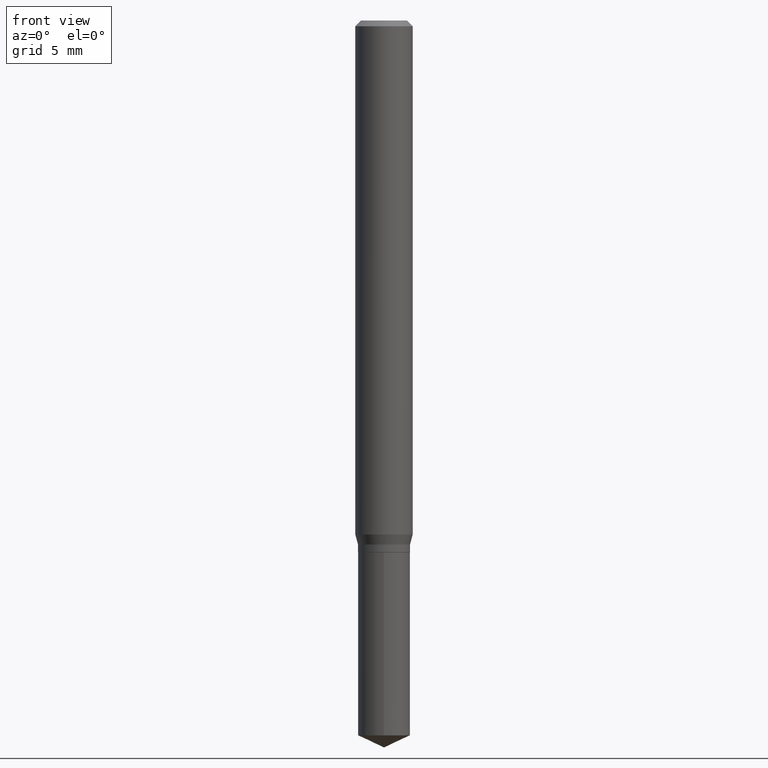
[diagram: clean part render]
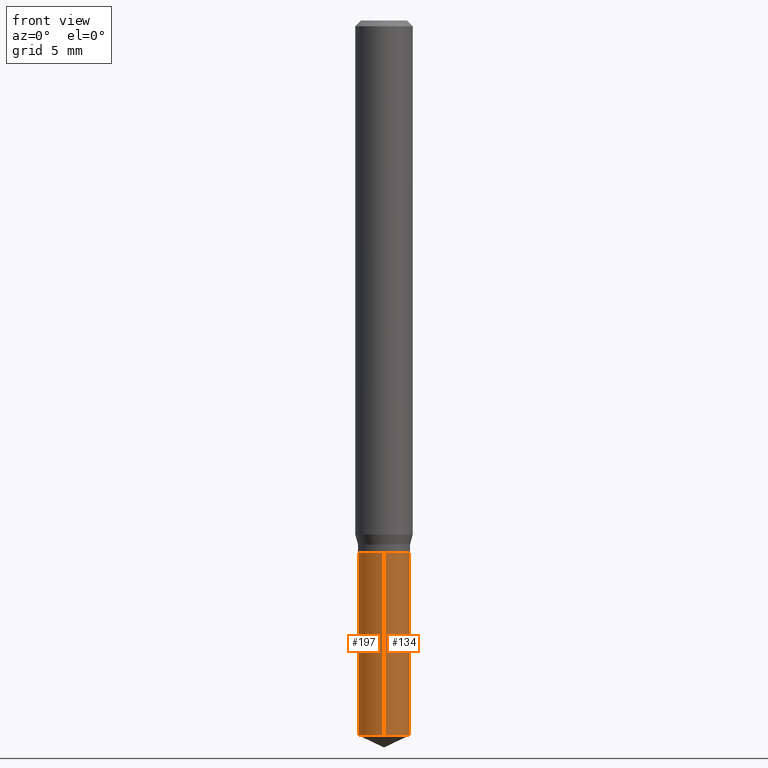
[diagram: same view with one multi-face feature highlighted, each face labeled with its STEP entity id]
A machine part, front view. The highlighted faces form ONE feature: a constant-radius fillet chain: 2 tangent blend faces with common blend radius 1.3602 mm. The faces share edges in the B-rep.
Their STEP definitions:
[1] entity #197 (Cylinder):
#5 = CARTESIAN_POINT ( 'NONE',  ( 3.597596898163577988E-29, -5.136425579091718699E-15, -1.471129224905799671 ) ) ;
#17 = DIRECTION ( 'NONE',  ( -6.982962677686265922E-15, -1.000000000000000000, 2.550745092123495208E-15 ) ) ;
#21 = CARTESIAN_POINT ( 'NONE',  ( -3.739376513900635326E-16, -0.05355000000000514210, -1.471129224905799449 ) ) ;
#23 = VECTOR ( 'NONE', #66, 39.37007874015748143 ) ;
#51 = CARTESIAN_POINT ( 'NONE',  ( 2.676565608369631794E-29, -3.821426325363822773E-15, -1.094499999999999806 ) ) ;
#58 = EDGE_LOOP ( 'NONE', ( #417, #445, #412, #478 ) ) ;
#63 = CARTESIAN_POINT ( 'NONE',  ( 3.804956349995603256E-16, 0.05354999999999617705, -1.094500000000000028 ) ) ;
#66 = DIRECTION ( 'NONE',  ( -2.445458899330790108E-29, 3.491495526022433599E-15, 1.000000000000000000 ) ) ;
#69 = EDGE_CURVE ( 'NONE', #365, #407, #452, .T. ) ;
#76 = AXIS2_PLACEMENT_3D ( 'NONE', #423, #328, #302 ) ;
#99 = EDGE_CURVE ( 'NONE', #257, #244, #157, .T. ) ;
#112 = DIRECTION ( 'NONE',  ( -6.982962677686265922E-15, -1.000000000000000000, 5.101490184246990416E-15 ) ) ;
#125 = DIRECTION ( 'NONE',  ( -2.445458899330790108E-29, 3.491495526022433599E-15, 1.000000000000000000 ) ) ;
#157 = CIRCLE ( 'NONE', #443, 0.05355000000000000038 ) ;
#169 = LINE ( 'NONE', #63, #23 ) ;
#195 = DIRECTION ( 'NONE',  ( -2.445458899330790108E-29, 3.491495526022433205E-15, 1.000000000000000000 ) ) ;
#197 = ADVANCED_FACE ( 'NONE', ( #316 ), #392, .T. ) ;
#234 = VECTOR ( 'NONE', #125, 39.37007874015748143 ) ;
#237 = LINE ( 'NONE', #432, #234 ) ;
#244 = VERTEX_POINT ( 'NONE', #21 ) ;
#257 = VERTEX_POINT ( 'NONE', #464 ) ;
#278 = CARTESIAN_POINT ( 'NONE',  ( -3.739376513900727524E-16, -0.05355000000000382371, -1.094499999999999806 ) ) ;
#302 = DIRECTION ( 'NONE',  ( -6.982962677686265922E-15, -1.000000000000000000, 2.550745092123495208E-15 ) ) ;
#316 = FACE_OUTER_BOUND ( 'NONE', #58, .T. ) ;
#328 = DIRECTION ( 'NONE',  ( -2.445458899330790108E-29, 3.491495526022433205E-15, 1.000000000000000000 ) ) ;
#360 = AXIS2_PLACEMENT_3D ( 'NONE', #51, #195, #17 ) ;
#365 = VERTEX_POINT ( 'NONE', #429 ) ;
#392 = CYLINDRICAL_SURFACE ( 'NONE', #360, 0.05355000000000000038 ) ;
#403 = EDGE_CURVE ( 'NONE', #244, #407, #237, .T. ) ;
#407 = VERTEX_POINT ( 'NONE', #278 ) ;
#412 = ORIENTED_EDGE ( 'NONE', *, *, #403, .T. ) ;
#417 = ORIENTED_EDGE ( 'NONE', *, *, #470, .F. ) ;
#423 = CARTESIAN_POINT ( 'NONE',  ( 2.676565608369631794E-29, -3.821426325363822773E-15, -1.094499999999999806 ) ) ;
#425 = DIRECTION ( 'NONE',  ( -2.445458899330790108E-29, 3.491495526022433205E-15, 1.000000000000000000 ) ) ;
#429 = CARTESIAN_POINT ( 'NONE',  ( 3.804956349995695947E-16, 0.05354999999999617705, -1.094500000000000028 ) ) ;
#432 = CARTESIAN_POINT ( 'NONE',  ( -3.739376513900727524E-16, -0.05355000000000382371, -1.094499999999999806 ) ) ;
#443 = AXIS2_PLACEMENT_3D ( 'NONE', #5, #425, #112 ) ;
#445 = ORIENTED_EDGE ( 'NONE', *, *, #99, .T. ) ;
#452 = CIRCLE ( 'NONE', #76, 0.05355000000000000038 ) ;
#464 = CARTESIAN_POINT ( 'NONE',  ( 3.804956349995695454E-16, 0.05354999999999485172, -1.471129224905800115 ) ) ;
#470 = EDGE_CURVE ( 'NONE', #257, #365, #169, .T. ) ;
#478 = ORIENTED_EDGE ( 'NONE', *, *, #69, .F. ) ;
[2] entity #134 (Cylinder):
#21 = CARTESIAN_POINT ( 'NONE',  ( -3.739376513900635326E-16, -0.05355000000000514210, -1.471129224905799449 ) ) ;
#23 = VECTOR ( 'NONE', #66, 39.37007874015748143 ) ;
#63 = CARTESIAN_POINT ( 'NONE',  ( 3.804956349995603256E-16, 0.05354999999999617705, -1.094500000000000028 ) ) ;
#66 = DIRECTION ( 'NONE',  ( -2.445458899330790108E-29, 3.491495526022433599E-15, 1.000000000000000000 ) ) ;
#72 = DIRECTION ( 'NONE',  ( -2.445458899330790108E-29, 3.491495526022433205E-15, 1.000000000000000000 ) ) ;
#90 = EDGE_CURVE ( 'NONE', #244, #257, #128, .T. ) ;
#118 = DIRECTION ( 'NONE',  ( -6.982962677686265922E-15, -1.000000000000000000, 5.101490184246990416E-15 ) ) ;
#122 = CARTESIAN_POINT ( 'NONE',  ( 2.676565608369631794E-29, -3.821426325363822773E-15, -1.094499999999999806 ) ) ;
#123 = DIRECTION ( 'NONE',  ( -2.445458899330790108E-29, 3.491495526022433205E-15, 1.000000000000000000 ) ) ;
#125 = DIRECTION ( 'NONE',  ( -2.445458899330790108E-29, 3.491495526022433599E-15, 1.000000000000000000 ) ) ;
#128 = CIRCLE ( 'NONE', #323, 0.05355000000000000038 ) ;
#134 = ADVANCED_FACE ( 'NONE', ( #463 ), #466, .T. ) ;
#169 = LINE ( 'NONE', #63, #23 ) ;
#180 = ORIENTED_EDGE ( 'NONE', *, *, #470, .T. ) ;
#184 = DIRECTION ( 'NONE',  ( -6.982962677686265922E-15, -1.000000000000000000, 2.550745092123495208E-15 ) ) ;
#222 = AXIS2_PLACEMENT_3D ( 'NONE', #122, #123, #238 ) ;
#225 = CARTESIAN_POINT ( 'NONE',  ( 2.676565608369631794E-29, -3.821426325363822773E-15, -1.094499999999999806 ) ) ;
#234 = VECTOR ( 'NONE', #125, 39.37007874015748143 ) ;
#237 = LINE ( 'NONE', #432, #234 ) ;
#238 = DIRECTION ( 'NONE',  ( -6.982962677686265922E-15, -1.000000000000000000, 2.550745092123495208E-15 ) ) ;
#244 = VERTEX_POINT ( 'NONE', #21 ) ;
#247 = AXIS2_PLACEMENT_3D ( 'NONE', #225, #72, #184 ) ;
#254 = EDGE_LOOP ( 'NONE', ( #485, #180, #448, #289 ) ) ;
#257 = VERTEX_POINT ( 'NONE', #464 ) ;
#259 = DIRECTION ( 'NONE',  ( -2.445458899330790108E-29, 3.491495526022433205E-15, 1.000000000000000000 ) ) ;
#273 = EDGE_CURVE ( 'NONE', #407, #365, #338, .T. ) ;
#278 = CARTESIAN_POINT ( 'NONE',  ( -3.739376513900727524E-16, -0.05355000000000382371, -1.094499999999999806 ) ) ;
#289 = ORIENTED_EDGE ( 'NONE', *, *, #403, .F. ) ;
#323 = AXIS2_PLACEMENT_3D ( 'NONE', #480, #259, #118 ) ;
#338 = CIRCLE ( 'NONE', #247, 0.05355000000000000038 ) ;
#365 = VERTEX_POINT ( 'NONE', #429 ) ;
#403 = EDGE_CURVE ( 'NONE', #244, #407, #237, .T. ) ;
#407 = VERTEX_POINT ( 'NONE', #278 ) ;
#429 = CARTESIAN_POINT ( 'NONE',  ( 3.804956349995695947E-16, 0.05354999999999617705, -1.094500000000000028 ) ) ;
#432 = CARTESIAN_POINT ( 'NONE',  ( -3.739376513900727524E-16, -0.05355000000000382371, -1.094499999999999806 ) ) ;
#448 = ORIENTED_EDGE ( 'NONE', *, *, #273, .F. ) ;
#463 = FACE_OUTER_BOUND ( 'NONE', #254, .T. ) ;
#464 = CARTESIAN_POINT ( 'NONE',  ( 3.804956349995695454E-16, 0.05354999999999485172, -1.471129224905800115 ) ) ;
#466 = CYLINDRICAL_SURFACE ( 'NONE', #222, 0.05355000000000000038 ) ;
#470 = EDGE_CURVE ( 'NONE', #257, #365, #169, .T. ) ;
#480 = CARTESIAN_POINT ( 'NONE',  ( 3.597596898163577988E-29, -5.136425579091718699E-15, -1.471129224905799671 ) ) ;
#485 = ORIENTED_EDGE ( 'NONE', *, *, #90, .T. ) ;